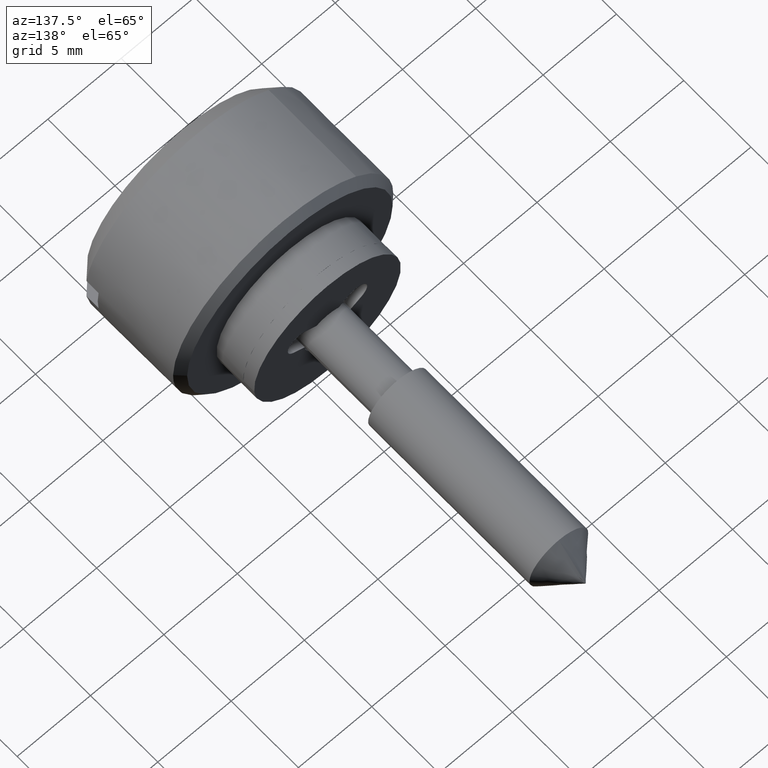
[diagram: clean part render]
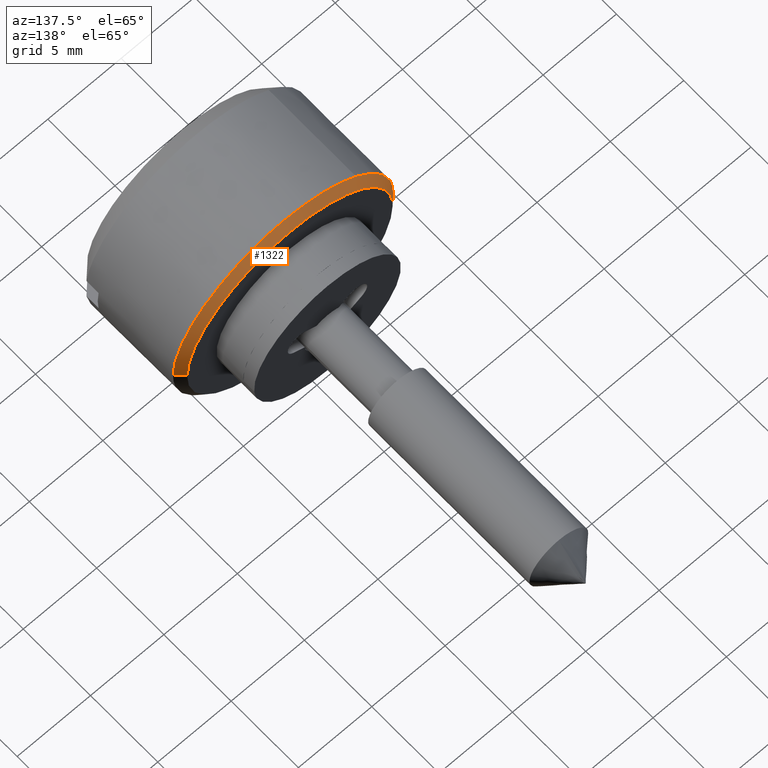
[diagram: same view with one face highlighted and labeled with its STEP entity id]
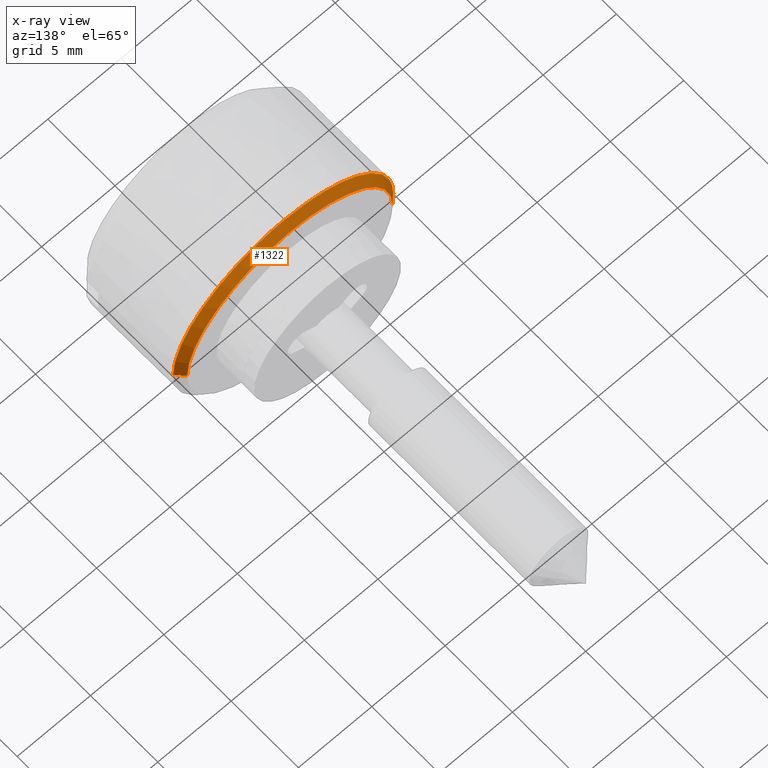
[diagram: x-ray of the same camera — body ghosted, the highlighted face saturated]
A machine part, auxiliary view. The second image highlights one B-rep face of the part: STEP entity #1322.
The next image is the same camera in x-ray: the body ghosted, the highlighted face saturated — about 0% of this face is hidden behind the body in this view.
In plain terms, the highlighted face is a freeform B-spline surface patch.
Its self-contained STEP definition (entity closure, byte-faithful):
#1209=CARTESIAN_POINT('',(-1.987500000000001,-6.987233937410895,0.060976666794888));
#1210=CARTESIAN_POINT('',(-1.987500000000001,-6.926257270616007,7.048210604205784));
#1211=CARTESIAN_POINT('',(-1.987500000000001,0.060976666794888,6.987233937410895));
#1212=CARTESIAN_POINT('',(-1.987500000000001,7.048210604205784,6.926257270616007));
#1213=CARTESIAN_POINT('',(-1.987500000000001,6.987233937410895,-0.060976666794888));
#1214=CARTESIAN_POINT('',(-2.512812499999944,-7.512526435120544,0.065560824973877));
#1215=CARTESIAN_POINT('',(-2.512812499999944,-7.446965610146667,7.578087260094423));
#1216=CARTESIAN_POINT('',(-2.512812499999944,0.065560824973877,7.512526435120544));
#1217=CARTESIAN_POINT('',(-2.512812499999944,7.578087260094423,7.446965610146667));
#1218=CARTESIAN_POINT('',(-2.512812499999944,7.512526435120544,-0.065560824973877));
#1226=(BOUNDED_SURFACE()B_SPLINE_SURFACE(2,1,((#1209,#1214),(#1210,#1215),(#1211,#1216),(#1212,#1217),(#1213,#1218)),.UNSPECIFIED.,.F.,.F.,.U.)B_SPLINE_SURFACE_WITH_KNOTS((3,2,3),(2,2),(0.0,12.447635316264471,24.895270632528948),(0.0,1.0),.UNSPECIFIED.)GEOMETRIC_REPRESENTATION_ITEM()RATIONAL_B_SPLINE_SURFACE(((1.0,1.0),(0.707106781186548,0.707106781186548),(1.0,1.0),(0.707106781186548,0.707106781186548),(1.0,1.0)))REPRESENTATION_ITEM('')SURFACE());
#1227=CARTESIAN_POINT('',(-2.500000000001232,-7.499714422982490,0.065449016247301));
#1228=VERTEX_POINT('',#1227);
#1229=CARTESIAN_POINT('',(-2.499999999999945,0.0,7.500000000000000));
#1230=VERTEX_POINT('',#1229);
#1231=CARTESIAN_POINT('',(-2.500000000001232,-7.499714422982490,0.065449016247301));
#1232=CARTESIAN_POINT('',(-2.499999999999945,-7.434834079443530,7.500000000000001));
#1233=CARTESIAN_POINT('',(-2.499999999999945,0.0,7.500000000000000));
#1241=(BOUNDED_CURVE()B_SPLINE_CURVE(2,(#1231,#1232,#1233),.UNSPECIFIED.,.F.,.U.)B_SPLINE_CURVE_WITH_KNOTS((3,3),(0.251539894335433,0.500000000000000),.UNSPECIFIED.)CURVE()GEOMETRIC_REPRESENTATION_ITEM()RATIONAL_B_SPLINE_CURVE((0.996414028099375,0.708910879620697,1.0))REPRESENTATION_ITEM(''));
#1242=EDGE_CURVE('',#1228,#1230,#1241,.T.);
#1243=ORIENTED_EDGE('',*,*,#1242,.F.);
#1244=CARTESIAN_POINT('',(-2.000000000002619,-6.999733461451649,0.061085748507914));
#1245=VERTEX_POINT('',#1244);
#1246=CARTESIAN_POINT('',(-2.000000000002619,-6.999733461451649,0.061085748507914));
#1247=CARTESIAN_POINT('',(-2.500000000001232,-7.499714422982490,0.065449016247301));
#1248=QUASI_UNIFORM_CURVE('',1,(#1246,#1247),.UNSPECIFIED.,.F.,.U.);
#1249=EDGE_CURVE('',#1245,#1228,#1248,.T.);
#1250=ORIENTED_EDGE('',*,*,#1249,.F.);
#1251=CARTESIAN_POINT('',(-2.0,0.0,7.0));
#1252=VERTEX_POINT('',#1251);
#1253=CARTESIAN_POINT('',(-2.0,0.0,7.0));
#1254=CARTESIAN_POINT('',(-2.000000000000000,-6.939178474126654,7.0));
#1255=CARTESIAN_POINT('',(-2.000000000002619,-6.999733461451649,0.061085748507914));
#1263=(BOUNDED_CURVE()B_SPLINE_CURVE(2,(#1253,#1254,#1255),.UNSPECIFIED.,.F.,.U.)B_SPLINE_CURVE_WITH_KNOTS((3,3),(0.500000000000000,0.748460105664043),.UNSPECIFIED.)CURVE()GEOMETRIC_REPRESENTATION_ITEM()RATIONAL_B_SPLINE_CURVE((1.0,0.708910879621311,0.996414028098162))REPRESENTATION_ITEM(''));
#1264=EDGE_CURVE('',#1252,#1245,#1263,.T.);
#1265=ORIENTED_EDGE('',*,*,#1264,.F.);
#1266=CARTESIAN_POINT('',(-2.000000000002619,6.999733461451649,-0.061085748507914));
#1267=VERTEX_POINT('',#1266);
#1268=CARTESIAN_POINT('',(-2.000000000002619,6.999733461451649,-0.061085748507914));
#1269=CARTESIAN_POINT('',(-2.000000000000000,7.0,-0.030543455764186));
#1270=CARTESIAN_POINT('',(-2.0,7.0,0.0));
#1271=CARTESIAN_POINT('',(-2.0,6.999999999999999,6.999999999999999));
#1272=CARTESIAN_POINT('',(-2.0,0.0,7.0));
#1280=(BOUNDED_CURVE()B_SPLINE_CURVE(2,(#1268,#1269,#1270,#1271,#1272),.UNSPECIFIED.,.F.,.U.)B_SPLINE_CURVE_WITH_KNOTS((3,2,3),(0.248460105664043,0.250000000000000,0.500000000000000),.UNSPECIFIED.)CURVE()GEOMETRIC_REPRESENTATION_ITEM()RATIONAL_B_SPLINE_CURVE((0.996414028098161,0.998195901565236,1.0,0.707106781186547,1.0))REPRESENTATION_ITEM(''));
#1281=EDGE_CURVE('',#1267,#1252,#1280,.T.);
#1282=ORIENTED_EDGE('',*,*,#1281,.F.);
#1283=CARTESIAN_POINT('',(-2.500000000001232,7.499714422982490,-0.065449016247301));
#1284=VERTEX_POINT('',#1283);
#1285=CARTESIAN_POINT('',(-2.000000000002619,6.999733461451649,-0.061085748507914));
#1286=CARTESIAN_POINT('',(-2.500000000001232,7.499714422982490,-0.065449016247301));
#1287=QUASI_UNIFORM_CURVE('',1,(#1285,#1286),.UNSPECIFIED.,.F.,.U.);
#1288=EDGE_CURVE('',#1267,#1284,#1287,.T.);
#1289=ORIENTED_EDGE('',*,*,#1288,.T.);
#1290=CARTESIAN_POINT('',(-2.499999999999945,4.969649641987388,5.617168542592760));
#1291=VERTEX_POINT('',#1290);
#1292=CARTESIAN_POINT('',(-2.499999999999945,4.969649641987389,5.617168542592760));
#1293=CARTESIAN_POINT('',(-2.499999999999945,7.499999999999999,3.378504808501678));
#1294=CARTESIAN_POINT('',(-2.499999999999945,7.500000000000000,0.0));
#1295=CARTESIAN_POINT('',(-2.499999999999945,7.500000000000000,-0.032725131164750));
#1296=CARTESIAN_POINT('',(-2.500000000001232,7.499714422982490,-0.065449016247301));
#1304=(BOUNDED_CURVE()B_SPLINE_CURVE(2,(#1292,#1293,#1294,#1295,#1296),.UNSPECIFIED.,.F.,.U.)B_SPLINE_CURVE_WITH_KNOTS((3,2,3),(0.615779849362054,0.750000000000000,0.751539894335433),.UNSPECIFIED.)CURVE()GEOMETRIC_REPRESENTATION_ITEM()RATIONAL_B_SPLINE_CURVE((0.854350164913177,0.842751312200102,1.0,0.998195901565850,0.996414028099374))REPRESENTATION_ITEM(''));
#1305=EDGE_CURVE('',#1291,#1284,#1304,.T.);
#1306=ORIENTED_EDGE('',*,*,#1305,.F.);
#1307=CARTESIAN_POINT('',(-2.499999999999945,0.0,7.500000000000000));
#1308=CARTESIAN_POINT('',(-2.499999999999945,2.841494716450372,7.499999999999999));
#1309=CARTESIAN_POINT('',(-2.499999999999945,4.969649641987389,5.617168542592760));
#1317=(BOUNDED_CURVE()B_SPLINE_CURVE(2,(#1307,#1308,#1309),.UNSPECIFIED.,.F.,.U.)B_SPLINE_CURVE_WITH_KNOTS((3,3),(0.500000000000000,0.615779849362054),.UNSPECIFIED.)CURVE()GEOMETRIC_REPRESENTATION_ITEM()RATIONAL_B_SPLINE_CURVE((1.0,0.864355468986445,0.854350164913177))REPRESENTATION_ITEM(''));
#1318=EDGE_CURVE('',#1230,#1291,#1317,.T.);
#1319=ORIENTED_EDGE('',*,*,#1318,.F.);
#1320=EDGE_LOOP('',(#1243,#1250,#1265,#1282,#1289,#1306,#1319));
#1321=FACE_OUTER_BOUND('',#1320,.T.);
#1322=ADVANCED_FACE('',(#1321),#1226,.T.);